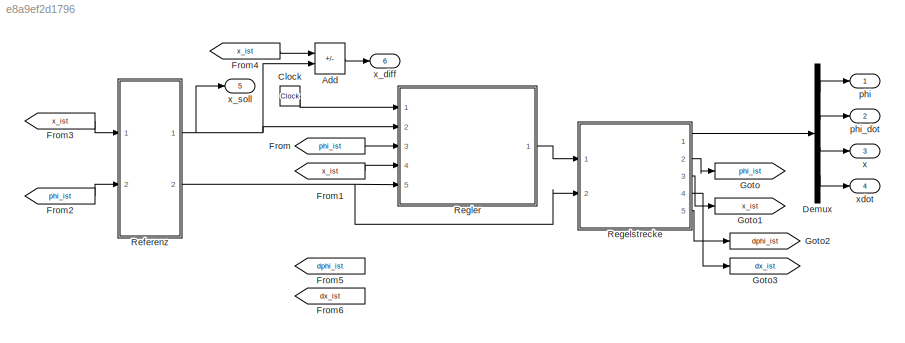
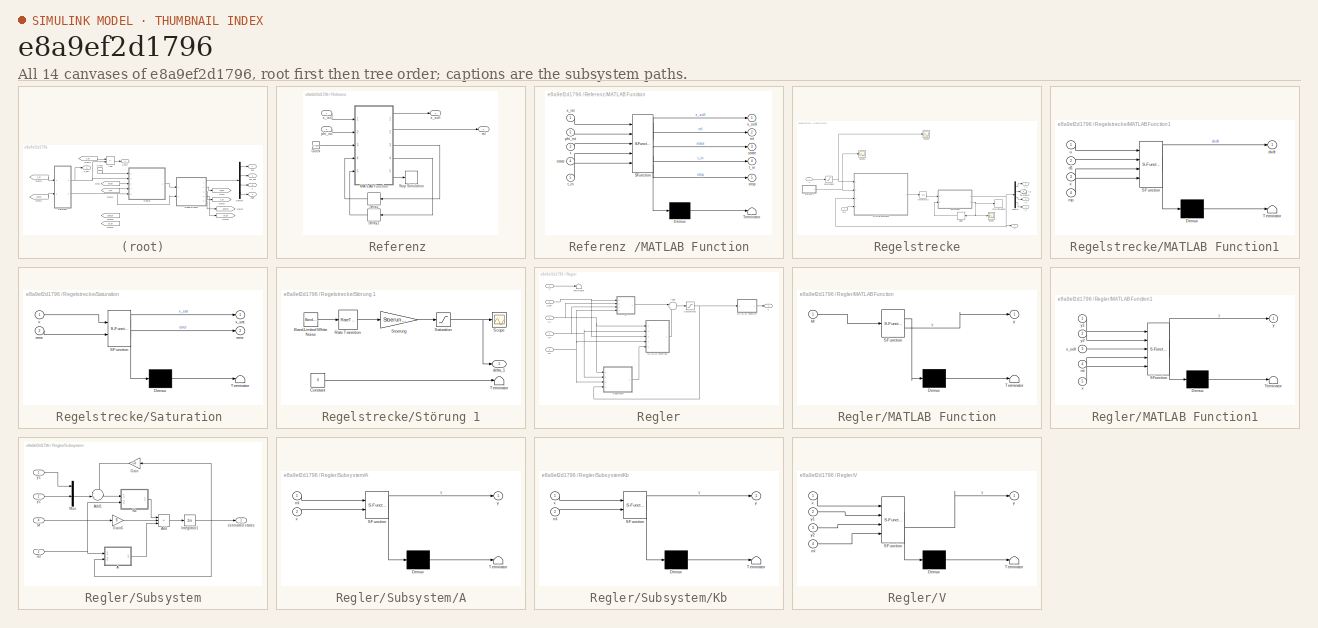
[diagram: thumbnail index - all 14 canvases of the model, root first then tree order]
MODEL slx_e8a9ef2d1796
KIND model
CONFIG AbsTol = auto
CONFIG EnableMultiTasking = on
CONFIG FixedStep = tStep
CONFIG MaxStep = auto
CONFIG MinStep = auto
CONFIG RelTol = 1e-3
CONFIG SampleTimeConstraint = Unconstrained
CONFIG Solver = ode23s
CONFIG SolverName = ode23s
CONFIG StartTime = tSim(1)
CONFIG StopTime = tSim(end)
BLOCK [Sum] Add
  IconShape = rectangular
  Inputs = +-
  Ports = [2, 1]
BLOCK [Clock] Clock
BLOCK [Demux] Demux
  Ports = [1, 4]
BLOCK [From] From
  GotoTag = phi_ist
BLOCK [From] From1
  GotoTag = x_ist
BLOCK [From] From2
  GotoTag = phi_ist
BLOCK [From] From3
  GotoTag = x_ist
BLOCK [From] From4
  GotoTag = x_ist
BLOCK [From] From5
  GotoTag = dphi_ist
BLOCK [From] From6
  GotoTag = dx_ist
BLOCK [Goto] Goto
  GotoTag = phi_ist
BLOCK [Goto] Goto1
  GotoTag = x_ist
BLOCK [Goto] Goto2
  GotoTag = dphi_ist
BLOCK [Goto] Goto3
  GotoTag = dx_ist
BLOCK [SubSystem] Referenz 
  Ports = [2, 2]
  RequestExecContextInheritance = off
BLOCK [Clock] Referenz /Clock
BLOCK [Delay] Referenz /Delay
  DelayLength = 1
  InitialCondition = 1
  InputPortMap = u0
  NameLocation = top
  Ports = [1, 1]
  SampleTime = 0.025
BLOCK [Delay] Referenz /Delay1
  DelayLength = 1
  InputPortMap = u0
  NameLocation = top
  Ports = [1, 1]
  SampleTime = 0.025
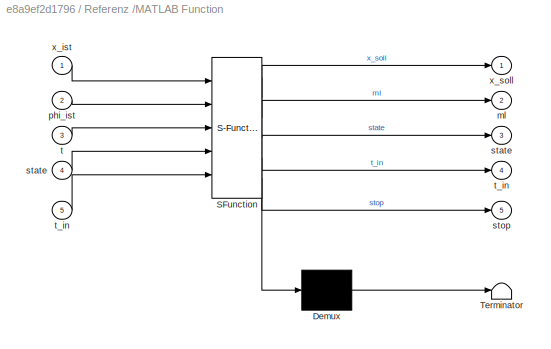
BLOCK [SubSystem] Referenz /MATLAB Function
  ErrorFcn = Stateflow.Translate.translate
  PermitHierarchicalResolution = ExplicitOnly
  Ports = [5, 5]
  RequestExecContextInheritance = off
  SFBlockType = MATLAB Function
  TreatAsAtomicUnit = on
BLOCK [Demux] Referenz /MATLAB Function/ Demux 
  Outputs = 1
  Ports = [1, 1]
BLOCK [S-Function] Referenz /MATLAB Function/ SFunction 
  EnableBusSupport = on
  FunctionName = sf_sfun
  PortCounts = [5 6]
  Ports = [5, 6]
  SFcnIsStateOwnerBlock = off
  SFunctionDeploymentMode = off
  Tag = Stateflow S-Function 2
BLOCK [Terminator] Referenz /MATLAB Function/ Terminator 
BLOCK [Outport] Referenz /MATLAB Function/ml
  Port = 2
  VectorParamsAs1DForOutWhenUnconnected = off
BLOCK [Inport] Referenz /MATLAB Function/phi_ist
  Port = 2
BLOCK [Outport] Referenz /MATLAB Function/state
  Port = 3
  VectorParamsAs1DForOutWhenUnconnected = off
BLOCK [Inport] Referenz /MATLAB Function/state 
  Port = 4
BLOCK [Outport] Referenz /MATLAB Function/stop
  Port = 5
  VectorParamsAs1DForOutWhenUnconnected = off
BLOCK [Inport] Referenz /MATLAB Function/t
  Port = 3
BLOCK [Outport] Referenz /MATLAB Function/t_in
  Port = 4
  VectorParamsAs1DForOutWhenUnconnected = off
BLOCK [Inport] Referenz /MATLAB Function/t_in 
  Port = 5
BLOCK [Inport] Referenz /MATLAB Function/x_ist
BLOCK [Outport] Referenz /MATLAB Function/x_soll
  VectorParamsAs1DForOutWhenUnconnected = off
BLOCK [Stop] Referenz /Stop Simulation
BLOCK [Outport] Referenz /ml
  Port = 2
  VectorParamsAs1DForOutWhenUnconnected = off
BLOCK [Inport] Referenz /phi_ist
  Port = 2
BLOCK [Inport] Referenz /x_ist
BLOCK [Outport] Referenz /x_soll 
  VectorParamsAs1DForOutWhenUnconnected = off
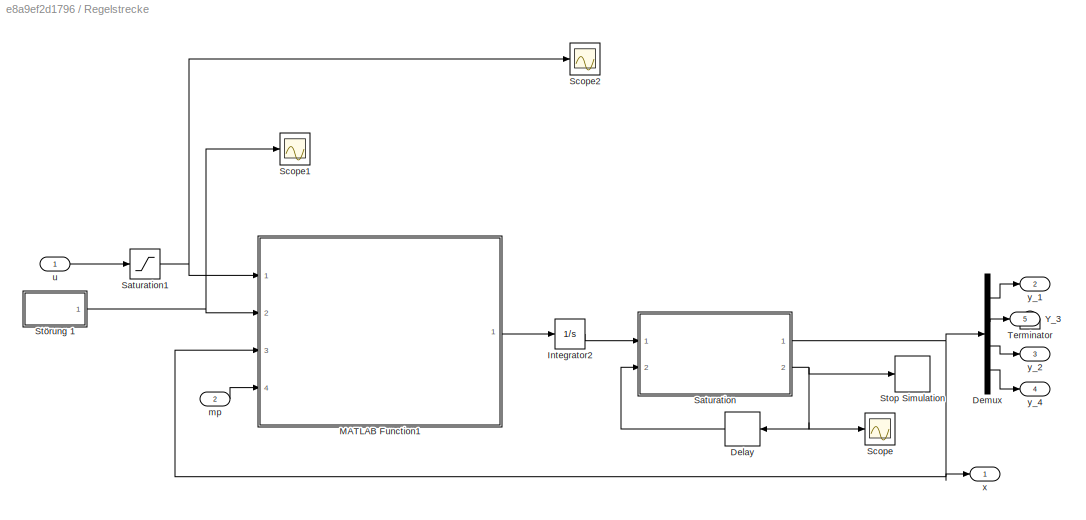
BLOCK [SubSystem] Regelstrecke
  MaskHideContents = on
  Ports = [2, 5]
  RequestExecContextInheritance = off
BLOCK [Delay] Regelstrecke/Delay
  DelayLength = 1
  InitialCondition = 0
  InputPortMap = u0
  NameLocation = top
  Ports = [1, 1]
  SampleTime = 0.025
BLOCK [Demux] Regelstrecke/Demux
  Ports = [1, 4]
BLOCK [Integrator] Regelstrecke/Integrator2
  InitialCondition = IC
  Ports = [1, 1]
BLOCK [SubSystem] Regelstrecke/MATLAB Function1
  ErrorFcn = Stateflow.Translate.translate
  PermitHierarchicalResolution = ExplicitOnly
  Ports = [4, 1]
  RequestExecContextInheritance = off
  SFBlockType = MATLAB Function
  TreatAsAtomicUnit = on
BLOCK [Demux] Regelstrecke/MATLAB Function1/ Demux 
  Outputs = 1
  Ports = [1, 1]
BLOCK [S-Function] Regelstrecke/MATLAB Function1/ SFunction 
  EnableBusSupport = on
  FunctionName = sf_sfun
  Parameters = Pmax,dp,ds,g,l,ms,r,umax
  PortCounts = [4 2]
  Ports = [4, 2]
  SFcnIsStateOwnerBlock = off
  SFunctionDeploymentMode = off
  Tag = Stateflow S-Function 4
BLOCK [Terminator] Regelstrecke/MATLAB Function1/ Terminator 
BLOCK [Inport] Regelstrecke/MATLAB Function1/d1
  Port = 2
BLOCK [Outport] Regelstrecke/MATLAB Function1/dxdt
  VectorParamsAs1DForOutWhenUnconnected = off
BLOCK [Inport] Regelstrecke/MATLAB Function1/mp
  Port = 4
BLOCK [Inport] Regelstrecke/MATLAB Function1/u
BLOCK [Inport] Regelstrecke/MATLAB Function1/x
  Port = 3
BLOCK [SubSystem] Regelstrecke/Saturation 
  ErrorFcn = Stateflow.Translate.translate
  PermitHierarchicalResolution = ExplicitOnly
  Ports = [2, 2]
  RequestExecContextInheritance = off
  SFBlockType = MATLAB Function
  TreatAsAtomicUnit = on
BLOCK [Demux] Regelstrecke/Saturation / Demux 
  Outputs = 1
  Ports = [1, 1]
BLOCK [S-Function] Regelstrecke/Saturation / SFunction 
  EnableBusSupport = on
  FunctionName = sf_sfun
  Parameters = L,phi_max
  PortCounts = [2 3]
  Ports = [2, 3]
  SFcnIsStateOwnerBlock = off
  SFunctionDeploymentMode = off
  Tag = Stateflow S-Function 3
BLOCK [Terminator] Regelstrecke/Saturation / Terminator 
BLOCK [Outport] Regelstrecke/Saturation /error
  Port = 2
  VectorParamsAs1DForOutWhenUnconnected = off
BLOCK [Inport] Regelstrecke/Saturation /error 
  Port = 2
BLOCK [Inport] Regelstrecke/Saturation /x
BLOCK [Outport] Regelstrecke/Saturation /x_sat
  VectorParamsAs1DForOutWhenUnconnected = off
BLOCK [Saturate] Regelstrecke/Saturation1
  LowerLimit = -umax
  UpperLimit = umax
BLOCK [Scope] Regelstrecke/Scope
  Floating = off
  NumInputPorts = 1
  Ports = [1]
  ScopeSpecificationString = Simulink.scopes.TimeScopeBlockCfg('CurrentConfiguration', extmgr.ConfigurationSet(extmgr.Configuration('Core','General UI',true),extmgr.Configuration('Core','Source UI',true),extmgr.Configuration('Sources','WiredSimulink',true,'DataLoggingVariableName','constraint_violation','DataLogging',true,'DataLoggingLimitDataPoints',true,'DataLoggingMaxPoints','1','DataLoggingSaveFormat','Array'),extmgr.Conf...<+1489ch>
BLOCK [Scope] Regelstrecke/Scope1
  Floating = off
  NumInputPorts = 1
  Ports = [1]
  ScopeSpecificationString = Simulink.scopes.TimeScopeBlockCfg('CurrentConfiguration', extmgr.ConfigurationSet(extmgr.Configuration('Core','General UI',true),extmgr.Configuration('Core','Source UI',true),extmgr.Configuration('Sources','WiredSimulink',true,'DataLoggingVariableName','ScopeData3'),extmgr.Configuration('Visuals','Time Domain',true,'SerializedDisplays',{struct('MinYLimReal','-2.13562','MaxYLimReal','2.79064','YLab...<+1424ch>
BLOCK [Scope] Regelstrecke/Scope2
  Floating = off
  NumInputPorts = 1
  Ports = [1]
  ScopeSpecificationString = Simulink.scopes.TimeScopeBlockCfg('CurrentConfiguration', extmgr.ConfigurationSet(extmgr.Configuration('Core','General UI',true),extmgr.Configuration('Core','Source UI',true),extmgr.Configuration('Sources','WiredSimulink',true,'DataLoggingVariableName','ScopeData7'),extmgr.Configuration('Visuals','Time Domain',true,'SerializedDisplays',{struct('MinYLimReal','-18.73148','MaxYLimReal','113.19239','Y...<+1433ch>
BLOCK [Stop] Regelstrecke/Stop Simulation
BLOCK [SubSystem] Regelstrecke/Störung 1
  Ports = [0, 1]
  RequestExecContextInheritance = off
BLOCK [Reference] Regelstrecke/Störung 1/Band-Limited White Noise  REF=simulink/Sources/Band-Limited
White Noise
  Ports = [0, 1]
  SourceBlock = simulink/Sources/Band-Limited\nWhite Noise
  SourceProductBaseCode = SL
  SourceType = Band-Limited White Noise.
BLOCK [Constant] Regelstrecke/Störung 1/Constant
  Value = 0
BLOCK [RateTransition] Regelstrecke/Störung 1/Rate Transition
BLOCK [Saturate] Regelstrecke/Störung 1/Saturation
  LowerLimit = -3
  UpperLimit = 3
BLOCK [Scope] Regelstrecke/Störung 1/Scope
  Floating = off
  NumInputPorts = 1
  Ports = [1]
  ScopeSpecificationString = Simulink.scopes.TimeScopeBlockCfg('CurrentConfiguration', extmgr.ConfigurationSet(extmgr.Configuration('Core','General UI',true),extmgr.Configuration('Core','Source UI',true),extmgr.Configuration('Sources','WiredSimulink',true,'DataLoggingVariableName','ScopeData1'),extmgr.Configuration('Visuals','Time Domain',true,'SerializedDisplays',{struct('MinYLimReal','-2.47373','MaxYLimReal','2.59032','YLab...<+1369ch>
BLOCK [Gain] Regelstrecke/Störung 1/Stoerung
  Gain = Stoerung1
BLOCK [Terminator] Regelstrecke/Störung 1/Terminator
BLOCK [Outport] Regelstrecke/Störung 1/delta_1 
  VectorParamsAs1DForOutWhenUnconnected = off
BLOCK [Terminator] Regelstrecke/Terminator
BLOCK [Outport] Regelstrecke/Y_3
  Port = 5
  VectorParamsAs1DForOutWhenUnconnected = off
BLOCK [Inport] Regelstrecke/mp
  Port = 2
BLOCK [Inport] Regelstrecke/u 
BLOCK [Outport] Regelstrecke/x
  VectorParamsAs1DForOutWhenUnconnected = off
BLOCK [Outport] Regelstrecke/y_1
  Port = 2
  VectorParamsAs1DForOutWhenUnconnected = off
BLOCK [Outport] Regelstrecke/y_2
  Port = 3
  VectorParamsAs1DForOutWhenUnconnected = off
BLOCK [Outport] Regelstrecke/y_4
  Port = 4
  VectorParamsAs1DForOutWhenUnconnected = off
BLOCK [SubSystem] Regler
  Ports = [5, 1]
  RequestExecContextInheritance = off
BLOCK [Sum] Regler/Add2
  Inputs = |+-
  Ports = [2, 1]
BLOCK [SubSystem] Regler/MATLAB Function
  ErrorFcn = Stateflow.Translate.translate
  PermitHierarchicalResolution = ExplicitOnly
  Ports = [1, 1]
  RequestExecContextInheritance = off
  SFBlockType = MATLAB Function
  TreatAsAtomicUnit = on
BLOCK [Demux] Regler/MATLAB Function/ Demux 
  Outputs = 1
  Ports = [1, 1]
BLOCK [S-Function] Regler/MATLAB Function/ SFunction 
  EnableBusSupport = on
  FunctionName = sf_sfun
  PortCounts = [1 2]
  Ports = [1, 2]
  SFcnIsStateOwnerBlock = off
  SFunctionDeploymentMode = off
  Tag = Stateflow S-Function 1
BLOCK [Terminator] Regler/MATLAB Function/ Terminator 
BLOCK [Inport] Regler/MATLAB Function/M
BLOCK [Outport] Regler/MATLAB Function/y
BLOCK [SubSystem] Regler/MATLAB Function1
  ErrorFcn = Stateflow.Translate.translate
  PermitHierarchicalResolution = ExplicitOnly
  Ports = [5, 1]
  RequestExecContextInheritance = off
  SFBlockType = MATLAB Function
  TreatAsAtomicUnit = on
BLOCK [Demux] Regler/MATLAB Function1/ Demux 
  Outputs = 1
  Ports = [1, 1]
BLOCK [S-Function] Regler/MATLAB Function1/ SFunction 
  EnableBusSupport = on
  FunctionName = sf_sfun
  Parameters = Kz,Kz_phi,Kz_r,Kz_s
  PortCounts = [5 2]
  Ports = [5, 2]
  SFcnIsStateOwnerBlock = off
  SFunctionDeploymentMode = off
  Tag = Stateflow S-Function 8
BLOCK [Terminator] Regler/MATLAB Function1/ Terminator 
BLOCK [Inport] Regler/MATLAB Function1/ml
  Port = 4
BLOCK [Inport] Regler/MATLAB Function1/x
  Port = 5
BLOCK [Inport] Regler/MATLAB Function1/x_soll
  Port = 3
BLOCK [Outport] Regler/MATLAB Function1/y
BLOCK [Inport] Regler/MATLAB Function1/y1
BLOCK [Inport] Regler/MATLAB Function1/y2
  Port = 2
BLOCK [Saturate] Regler/Saturation1
  LowerLimit = -0.4
  UpperLimit = 0.4
BLOCK [SubSystem] Regler/Subsystem
  Ports = [4, 1]
  RequestExecContextInheritance = off
BLOCK [SubSystem] Regler/Subsystem/A
  ErrorFcn = Stateflow.Translate.translate
  PermitHierarchicalResolution = ExplicitOnly
  Ports = [2, 1]
  RequestExecContextInheritance = off
  SFBlockType = MATLAB Function
  TreatAsAtomicUnit = on
BLOCK [Demux] Regler/Subsystem/A/ Demux 
  Outputs = 1
  Ports = [1, 1]
BLOCK [S-Function] Regler/Subsystem/A/ SFunction 
  EnableBusSupport = on
  FunctionName = sf_sfun
  PortCounts = [2 2]
  Ports = [2, 2]
  SFcnIsStateOwnerBlock = off
  SFunctionDeploymentMode = off
  Tag = Stateflow S-Function 6
BLOCK [Terminator] Regler/Subsystem/A/ Terminator 
BLOCK [Inport] Regler/Subsystem/A/ml
BLOCK [Inport] Regler/Subsystem/A/x
  Port = 2
BLOCK [Outport] Regler/Subsystem/A/y
BLOCK [Sum] Regler/Subsystem/Add
  IconShape = rectangular
  Inputs = +++
  Ports = [3, 1]
BLOCK [Sum] Regler/Subsystem/Add1
  Inputs = -+|
  Ports = [2, 1]
BLOCK [Gain] Regler/Subsystem/Gain
  Gain = Cb
  Multiplication = Matrix(K*u)
  NameLocation = top
BLOCK [Gain] Regler/Subsystem/Gain6
  Gain = B
BLOCK [Integrator] Regler/Subsystem/Integrator1
  Ports = [1, 1]
BLOCK [SubSystem] Regler/Subsystem/Kb
  ErrorFcn = Stateflow.Translate.translate
  PermitHierarchicalResolution = ExplicitOnly
  Ports = [2, 1]
  RequestExecContextInheritance = off
  SFBlockType = MATLAB Function
  TreatAsAtomicUnit = on
BLOCK [Demux] Regler/Subsystem/Kb/ Demux 
  Outputs = 1
  Ports = [1, 1]
BLOCK [S-Function] Regler/Subsystem/Kb/ SFunction 
  EnableBusSupport = on
  FunctionName = sf_sfun
  Parameters = Kb
  PortCounts = [2 2]
  Ports = [2, 2]
  SFcnIsStateOwnerBlock = off
  SFunctionDeploymentMode = off
  Tag = Stateflow S-Function 7
BLOCK [Terminator] Regler/Subsystem/Kb/ Terminator 
BLOCK [Inport] Regler/Subsystem/Kb/ml
  Port = 2
BLOCK [Inport] Regler/Subsystem/Kb/x
BLOCK [Outport] Regler/Subsystem/Kb/y
BLOCK [Inport] Regler/Subsystem/M
  Port = 4
BLOCK [Mux] Regler/Subsystem/Mux
  DisplayOption = bar
  Ports = [4, 1]
BLOCK [Outport] Regler/Subsystem/estimated states
BLOCK [Inport] Regler/Subsystem/ml
  Port = 3
BLOCK [Inport] Regler/Subsystem/y1
BLOCK [Inport] Regler/Subsystem/y2
  Port = 2
BLOCK [Terminator] Regler/Terminator
BLOCK [SubSystem] Regler/V
  ErrorFcn = Stateflow.Translate.translate
  PermitHierarchicalResolution = ExplicitOnly
  Ports = [4, 1]
  RequestExecContextInheritance = off
  SFBlockType = MATLAB Function
  TreatAsAtomicUnit = on
BLOCK [Demux] Regler/V/ Demux 
  Outputs = 1
  Ports = [1, 1]
BLOCK [S-Function] Regler/V/ SFunction 
  EnableBusSupport = on
  FunctionName = sf_sfun
  Parameters = V,V_phi,V_r,V_s
  PortCounts = [4 2]
  Ports = [4, 2]
  SFcnIsStateOwnerBlock = off
  SFunctionDeploymentMode = off
  Tag = Stateflow S-Function 5
BLOCK [Terminator] Regler/V/ Terminator 
BLOCK [Inport] Regler/V/ml
  Port = 4
BLOCK [Inport] Regler/V/x
BLOCK [Outport] Regler/V/y
BLOCK [Inport] Regler/V/y1
  Port = 2
BLOCK [Inport] Regler/V/y2
  Port = 3
BLOCK [Inport] Regler/ml
  Port = 5
BLOCK [Inport] Regler/t
BLOCK [Outport] Regler/u
  VectorParamsAs1DForOutWhenUnconnected = off
BLOCK [Inport] Regler/x_soll 
  Port = 2
BLOCK [Inport] Regler/y_1
  Port = 3
BLOCK [Inport] Regler/y_2
  Port = 4
BLOCK [Outport] phi
  VectorParamsAs1DForOutWhenUnconnected = off
BLOCK [Outport] phi_dot
  Port = 2
  VectorParamsAs1DForOutWhenUnconnected = off
BLOCK [Outport] x
  Port = 3
  VectorParamsAs1DForOutWhenUnconnected = off
BLOCK [Outport] x_diff
  Port = 6
  VectorParamsAs1DForOutWhenUnconnected = off
BLOCK [Outport] x_soll
  Port = 5
  VectorParamsAs1DForOutWhenUnconnected = off
BLOCK [Outport] xdot
  Port = 4
  VectorParamsAs1DForOutWhenUnconnected = off
LINE Add:1 -> x_diff:1
LINE Clock:1 -> Regler:1
LINE Demux:1 -> phi:1
LINE Demux:2 -> phi_dot:1
LINE Demux:3 -> x:1
LINE Demux:4 -> xdot:1
LINE From1:1 -> Regler:4
LINE From2:1 -> Referenz :2
LINE From3:1 -> Referenz :1
LINE From4:1 -> Add:1
LINE From:1 -> Regler:3
LINE Referenz /Clock:1 -> Referenz /MATLAB Function:3
LINE Referenz /Delay1:1 -> Referenz /MATLAB Function:5
LINE Referenz /Delay:1 -> Referenz /MATLAB Function:4
LINE Referenz /MATLAB Function:1 -> Referenz /x_soll :1
LINE Referenz /MATLAB Function:2 -> Referenz /ml:1
LINE Referenz /MATLAB Function:3 -> Referenz /Delay:1
LINE Referenz /MATLAB Function:4 -> Referenz /Delay1:1
LINE Referenz /MATLAB Function:5 -> Referenz /Stop Simulation:1
LINE Referenz /phi_ist:1 -> Referenz /MATLAB Function:2
LINE Referenz /x_ist:1 -> Referenz /MATLAB Function:1
NET Referenz :1 -> Add:2, Regler:2, x_soll:1
NET Referenz :2 -> Regelstrecke:2, Regler:5
LINE Regelstrecke/Delay:1 -> Regelstrecke/Saturation :2
LINE Regelstrecke/Demux:1 -> Regelstrecke/y_1:1
LINE Regelstrecke/Demux:2 -> Regelstrecke/Y_3:1
LINE Regelstrecke/Demux:3 -> Regelstrecke/y_2:1
LINE Regelstrecke/Demux:4 -> Regelstrecke/y_4:1
LINE Regelstrecke/Integrator2:1 -> Regelstrecke/Saturation :1
LINE Regelstrecke/MATLAB Function1:1 -> Regelstrecke/Integrator2:1
NET Regelstrecke/Saturation :1 -> Regelstrecke/Demux:1, Regelstrecke/MATLAB Function1:3, Regelstrecke/x:1
NET Regelstrecke/Saturation :2 -> Regelstrecke/Delay:1, Regelstrecke/Scope:1, Regelstrecke/Stop Simulation:1
NET Regelstrecke/Saturation1:1 -> Regelstrecke/MATLAB Function1:1, Regelstrecke/Scope2:1
LINE Regelstrecke/Störung 1/Band-Limited White Noise:1 -> Regelstrecke/Störung 1/Rate Transition:1
LINE Regelstrecke/Störung 1/Constant:1 -> Regelstrecke/Störung 1/Terminator:1
LINE Regelstrecke/Störung 1/Rate Transition:1 -> Regelstrecke/Störung 1/Stoerung:1
NET Regelstrecke/Störung 1/Saturation:1 -> Regelstrecke/Störung 1/Scope:1, Regelstrecke/Störung 1/delta_1 :1
LINE Regelstrecke/Störung 1/Stoerung:1 -> Regelstrecke/Störung 1/Saturation:1
NET Regelstrecke/Störung 1:1 -> Regelstrecke/MATLAB Function1:2, Regelstrecke/Scope1:1
LINE Regelstrecke/mp:1 -> Regelstrecke/MATLAB Function1:4
LINE Regelstrecke/u :1 -> Regelstrecke/Saturation1:1
LINE Regelstrecke:1 -> Demux:1
LINE Regelstrecke:2 -> Goto:1
LINE Regelstrecke:3 -> Goto1:1
LINE Regelstrecke:4 -> Goto3:1
LINE Regelstrecke:5 -> Goto2:1
LINE Regler/Add2:1 -> Regler/Saturation1:1
LINE Regler/MATLAB Function1:1 -> Regler/Add2:2
LINE Regler/MATLAB Function:1 -> Regler/u:1
NET Regler/Saturation1:1 -> Regler/MATLAB Function:1, Regler/Subsystem:4
LINE Regler/Subsystem/A:1 -> Regler/Subsystem/Add:3
LINE Regler/Subsystem/Add1:1 -> Regler/Subsystem/Kb:1
LINE Regler/Subsystem/Add:1 -> Regler/Subsystem/Integrator1:1
LINE Regler/Subsystem/Gain6:1 -> Regler/Subsystem/Add:2
LINE Regler/Subsystem/Gain:1 -> Regler/Subsystem/Add1:1
NET Regler/Subsystem/Integrator1:1 -> Regler/Subsystem/A:2, Regler/Subsystem/Gain:1, Regler/Subsystem/estimated states:1
LINE Regler/Subsystem/Kb:1 -> Regler/Subsystem/Add:1
LINE Regler/Subsystem/M:1 -> Regler/Subsystem/Gain6:1
LINE Regler/Subsystem/Mux:1 -> Regler/Subsystem/Add1:2
NET Regler/Subsystem/ml:1 -> Regler/Subsystem/A:1, Regler/Subsystem/Kb:2
LINE Regler/Subsystem/y1:1 -> Regler/Subsystem/Mux:1
LINE Regler/Subsystem/y2:1 -> Regler/Subsystem/Mux:3
LINE Regler/Subsystem:1 -> Regler/MATLAB Function1:5
LINE Regler/V:1 -> Regler/Add2:1
NET Regler/ml:1 -> Regler/MATLAB Function1:4, Regler/Subsystem:3, Regler/V:4
LINE Regler/t:1 -> Regler/Terminator:1
NET Regler/x_soll :1 -> Regler/MATLAB Function1:3, Regler/V:1
NET Regler/y_1:1 -> Regler/MATLAB Function1:1, Regler/Subsystem:1, Regler/V:2
NET Regler/y_2:1 -> Regler/MATLAB Function1:2, Regler/Subsystem:2, Regler/V:3
LINE Regler:1 -> Regelstrecke:1
note: NET lines group one-source signal fan-out (src -> all destinations, sorted); 1:1 wires keep LINE
CHART Regler/V states=1 transitions=1
  STATE_LABEL 'eML_blk_kernel()'
  STATE_LABEL 'SCRIPT:\nfunction y = fcn(x, y1, y2, V, ml, V_s, V_r, V_phi)\n\nif abs(y2) >= 2.48\n    K = V_r;\nelseif abs(y1-pi/4) < 0.15\n    K = V_phi;\nelseif abs(x-y2) > 2\n    K = V_s;\nelse\n    K = V;\n\nend\ny = K(ml)*x;\n'
CHART Regler/Subsystem/A states=1 transitions=1
  STATE_LABEL 'eML_blk_kernel()'
  STATE_LABEL 'SCRIPT:\nfunction y = A_ml(ml, x)\n\nA = [0, 1, 0, 0;\n     -9.81*(1+ml/0.8), 0, 0, .009;\n     0, 0, 0, 1;\n     12.26*ml, 0, 0, -.009];\n\ny = A*x;\n'
CHART Regler/Subsystem/Kb states=1 transitions=1
  STATE_LABEL 'eML_blk_kernel()'
  STATE_LABEL 'SCRIPT:\nfunction y = Kb_ml(x, Kb, ml)\n\ni = (ml-1)*4+1;\nK = Kb(i:i+3,:);\n\ny = K*x;\n'
CHART Regler/MATLAB Function1 states=1 transitions=1
  STATE_LABEL 'eML_blk_kernel()'
  STATE_LABEL 'SCRIPT:\nfunction y = fcn(y1, y2, x_soll, ml, x, Kz, Kz_s, Kz_r, Kz_phi)\n\nif abs(y2)  >= 2.48\n    K = Kz_r;\nelseif abs(y1-pi/4) < 0.15\n    K = Kz_phi;\nelseif abs(x_soll-y2) > 2\n    K = Kz_s;\nelse\n    K = Kz;\n\nend\ny = K(ml,:) * x;\n'
CHART Regler/MATLAB Function states=1 transitions=1
  STATE_LABEL 'eML_blk_kernel()'
  STATE_LABEL 'SCRIPT:\nfunction y = fcn(M)\n\nP = sign2(M)*(M/2 * 9.434)^2;\nu = 100*P/3.56;\n\ny = u;\nend\nfunction u =  sign2(x)\n    if(x == 0) \n        u = -1;\n    else\n        u = sign(x);\n    end\nend'
CHART Referenz
/MATLAB Function states=1 transitions=1
  STATE_LABEL 'eML_blk_kernel()'
  STATE_LABEL 'SCRIPT:\n%Dies ist ein Beispiel fuer die Referenzfunktion. Die Referenzpunkte können\n%veraendert werden, indem Eintraege in x_ref_vec ergaenzt oder entfernt\n%werden. Entsprechend muss in ml_vec jeweils ein Wert für m_l zu jedem\n%Referenzpunkt gewaehlt werden. \n%!Beachten Sie dass fuer die Wettberwebsaufgabe andere Referenzpunkte und\n%Massen gewaehlt werden!.\n\nfunction [x_soll,ml,state,t_in,stop] = ...<+959ch>'
CHART Regelstrecke/Saturation  states=1 transitions=1
  STATE_LABEL 'eML_blk_kernel()'
  STATE_LABEL 'SCRIPT:\nfunction [x_sat,error]  = fcn(x, error,phi_max, L)\n\n\nx_sat = x;\n\n%Saturation in x\nif x(3) >= L/2\n    x_sat(3) = L/2;\n    x_sat(4) = 0; %Roboter fällt herunter!!!!\n    error = 1;\nend\n\nif x(3) <= -L/2\n    x_sat(3) = -L/2;\n    x_sat(4) = 0; %Roboter fällt herunter!!!!\n    error = 1;\nend\n\n%Saturation in phi\nif (abs(x(1)) > phi_max) \n    error = 1;\nend\n\nif (error)\n    x_sat = zeros(1,4);\nend\n\n\n'
CHART Regelstrecke/MATLAB Function1 states=1 transitions=1
  STATE_LABEL 'eML_blk_kernel()'
  STATE_LABEL 'SCRIPT:\nfunction dxdt   = dynamikStrecke(u, d1, x, g, ms, l, Pmax, umax, r,ds,dp, mp)\n\n\n%Berechnung des Motormomentes\nP = (u+d1)/umax*Pmax; %Leistung eines Motors\nM_max = sqrt(abs(P))/9.434;\n\nM = 2*sign2(u+d1)*M_max; % Gesamtmoment\n\n\n%Systemdynamik\nphi = x(1);\ndphi = x(2);\nw = x(3);\ndw = x(4);\n\ndxdt = zeros(1,4);  \ndxdt = statespace_model(M,g, ms, l, r,ds,dp, mp,w,dw,phi,dphi,x); %Hier wird direkt...<+247ch>'
CHART  states=0 transitions=0
CHART  states=0 transitions=0
CHART  states=0 transitions=0
CHART  states=0 transitions=0
CHART  states=0 transitions=0
CHART  states=0 transitions=0
CHART  states=0 transitions=0
CHART  states=0 transitions=0
